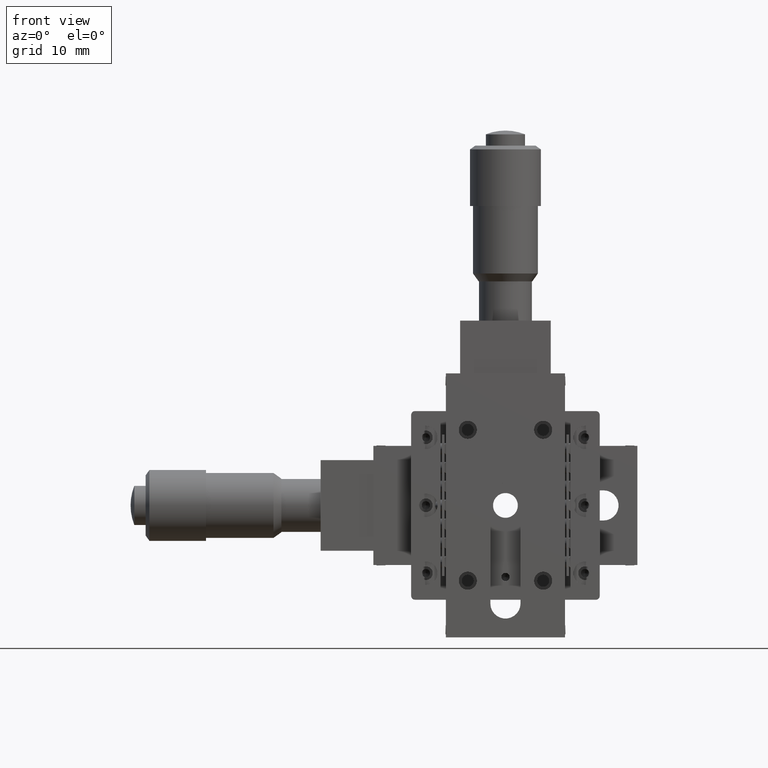
[diagram: clean part render]
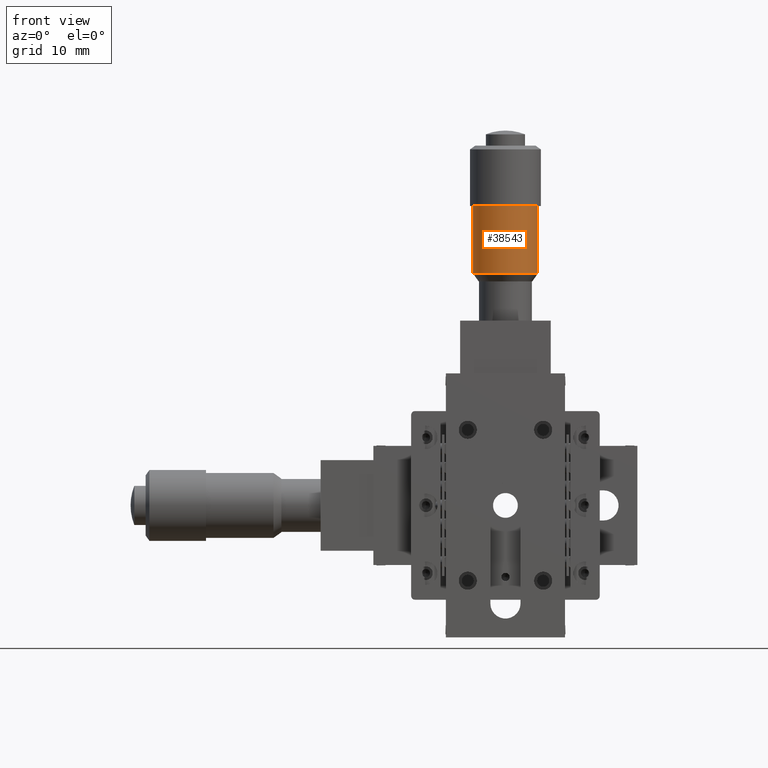
[diagram: same view with one face highlighted and labeled with its STEP entity id]
A machine part, front view. The second image highlights one B-rep face of the part: STEP entity #38543.
In plain terms, the highlighted cylindrical surface (edge-blend (fillet) strip) has radius 4.3 mm, axis along (0, 0, 1).
Its self-contained STEP definition (entity closure, byte-faithful):
#1103 = CARTESIAN_POINT ( 'NONE',  ( -4.298161888975661400, 6.325715532416905900, 36.62222717098815400 ) ) ;
#1215 = DIRECTION ( 'NONE',  ( 0.9995725314435851500, -0.02923618277858836300, 0.0000000000000000000 ) ) ;
#1344 = CARTESIAN_POINT ( 'NONE',  ( -4.299475642102383900, 6.267207786158824200, 36.22701718947350000 ) ) ;
#1588 = ORIENTED_EDGE ( 'NONE', *, *, #47092, .T. ) ;
#2334 = VERTEX_POINT ( 'NONE', #50596 ) ;
#4590 = CARTESIAN_POINT ( 'NONE',  ( 4.298161885207453500, 6.074284414051987800, 83.73849299920763700 ) ) ;
#4661 = VERTEX_POINT ( 'NONE', #35452 ) ;
#4986 = VERTEX_POINT ( 'NONE', #43692 ) ;
#6276 = ORIENTED_EDGE ( 'NONE', *, *, #39164, .F. ) ;
#6992 = VERTEX_POINT ( 'NONE', #67832 ) ;
#7190 = ORIENTED_EDGE ( 'NONE', *, *, #36178, .T. ) ;
#7510 = CARTESIAN_POINT ( 'NONE',  ( 2.584912180171703300E-014, 6.199999999999897100, 37.23787676788948900 ) ) ;
#7522 = B_SPLINE_CURVE_WITH_KNOTS ( 'NONE', 3,
 ( #1103, #50589, #49903, #17987, #33906, #50124, #29107, #28878, #1344, #45326, #28659 ),
 .UNSPECIFIED., .F., .F.,
 ( 4, 2, 2, 2, 1, 4 ),
 ( 0.3650545863494868400, 0.5237909397621030000, 0.6825272931747190500, 0.7618954698810391800, 0.8412636465873595300, 1.000000000000000000 ),
 .UNSPECIFIED. ) ;
#7734 = CARTESIAN_POINT ( 'NONE',  ( 4.296902805728514400, 6.036824394829379200, 37.14221612708995900 ) ) ;
#7888 = ORIENTED_EDGE ( 'NONE', *, *, #59313, .T. ) ;
#9181 = VERTEX_POINT ( 'NONE', #50299 ) ;
#10602 = CARTESIAN_POINT ( 'NONE',  ( -4.299084991811113800, 6.289292834810142500, 35.77487089155305000 ) ) ;
#10736 = ORIENTED_EDGE ( 'NONE', *, *, #33158, .T. ) ;
#12002 = CARTESIAN_POINT ( 'NONE',  ( -4.298771640651714200, 6.304868309213713200, 35.69321220332514600 ) ) ;
#13942 = ORIENTED_EDGE ( 'NONE', *, *, #26246, .T. ) ;
#15144 = AXIS2_PLACEMENT_3D ( 'NONE', #7510, #44865, #29332 ) ;
#15359 = AXIS2_PLACEMENT_3D ( 'NONE', #23997, #29443, #56100 ) ;
#16071 = CARTESIAN_POINT ( 'NONE',  ( -4.298161881797285300, 6.325715702572399100, 35.61349922465714700 ) ) ;
#17987 = CARTESIAN_POINT ( 'NONE',  ( -4.299071530591043600, 6.289680441941953900, 36.45123226953234800 ) ) ;
#18116 = VERTEX_POINT ( 'NONE', #39909 ) ;
#19120 = DIRECTION ( 'NONE',  ( 0.9995725314435851500, -0.02923618277858836300, 0.0000000000000000000 ) ) ;
#19177 = LINE ( 'NONE', #61086, #46399 ) ;
#20250 = ORIENTED_EDGE ( 'NONE', *, *, #41293, .F. ) ;
#20297 = DIRECTION ( 'NONE',  ( 1.110223024626044300E-016, 1.762506864451433100E-016, 1.000000000000000000 ) ) ;
#22779 = CIRCLE ( 'NONE', #46798, 4.300000000000006000 ) ;
#23997 = CARTESIAN_POINT ( 'NONE',  ( 3.099642705165774200E-014, 6.199999999999918500, 83.73849299920763700 ) ) ;
#24347 = VERTEX_POINT ( 'NONE', #40377 ) ;
#25356 = DIRECTION ( 'NONE',  ( 1.110223024626044300E-016, 1.762506864451433100E-016, 1.000000000000000000 ) ) ;
#25669 = ORIENTED_EDGE ( 'NONE', *, *, #28424, .T. ) ;
#25878 = CIRCLE ( 'NONE', #31681, 4.300000000000006000 ) ;
#26246 = EDGE_CURVE ( 'NONE', #4661, #18116, #25878, .T. ) ;
#26406 = LINE ( 'NONE', #56567, #44318 ) ;
#26724 = CARTESIAN_POINT ( 'NONE',  ( -4.299518700135160500, 6.264334649978660100, 36.10190665839508000 ) ) ;
#27202 = LINE ( 'NONE', #34761, #28850 ) ;
#27954 = FACE_OUTER_BOUND ( 'NONE', #59291, .T. ) ;
#28302 = CARTESIAN_POINT ( 'NONE',  ( 2.597022116506557600E-014, 6.199999999999898000, 39.69746992999999000 ) ) ;
#28424 = EDGE_CURVE ( 'NONE', #2334, #4986, #7522, .T. ) ;
#28659 = CARTESIAN_POINT ( 'NONE',  ( -4.299518700135160500, 6.264334649978660100, 36.10190665839508000 ) ) ;
#28850 = VECTOR ( 'NONE', #29258, 1000.000000000000000 ) ;
#28878 = CARTESIAN_POINT ( 'NONE',  ( -4.299417012248877500, 6.270818284547171800, 36.28325171279388400 ) ) ;
#29107 = CARTESIAN_POINT ( 'NONE',  ( -4.299371041534885600, 6.273556249581600000, 36.31743757126597000 ) ) ;
#29258 = DIRECTION ( 'NONE',  ( 5.173820016162134100E-018, 1.793466154370806700E-016, 1.000000000000000000 ) ) ;
#29332 = DIRECTION ( 'NONE',  ( 0.9948952906140942100, 0.1009126390195849800, 0.0000000000000000000 ) ) ;
#29443 = DIRECTION ( 'NONE',  ( 1.110223024626044300E-016, 1.762506864451433100E-016, 1.000000000000000000 ) ) ;
#30022 = AXIS2_PLACEMENT_3D ( 'NONE', #28302, #66326, #1215 ) ;
#31681 = AXIS2_PLACEMENT_3D ( 'NONE', #67798, #62600, #19120 ) ;
#32614 = CARTESIAN_POINT ( 'NONE',  ( 4.298161885207448100, 6.074284414051980700, 37.14221612708995900 ) ) ;
#33158 = EDGE_CURVE ( 'NONE', #4986, #65021, #46766, .T. ) ;
#33770 = DIRECTION ( 'NONE',  ( 1.110223024626044300E-016, 1.762506864451433100E-016, 1.000000000000000000 ) ) ;
#33906 = CARTESIAN_POINT ( 'NONE',  ( -4.299194531600720700, 6.283372684705191200, 36.40825967323662100 ) ) ;
#34761 = CARTESIAN_POINT ( 'NONE',  ( 4.296902805728514400, 6.036824394829379200, 37.14221612708995900 ) ) ;
#35452 = CARTESIAN_POINT ( 'NONE',  ( -4.298161885207396600, 6.325715585947826900, 30.74746992999999400 ) ) ;
#36178 = EDGE_CURVE ( 'NONE', #9181, #6992, #26406, .T. ) ;
#36757 = CARTESIAN_POINT ( 'NONE',  ( 4.296902805728514400, 6.036824394829379200, 37.23787676788948900 ) ) ;
#37693 = DIRECTION ( 'NONE',  ( 0.9997107461728599300, -0.02405044670071193900, 0.0000000000000000000 ) ) ;
#38543 = ADVANCED_FACE ( 'NONE', ( #27954 ), #39009, .T. ) ;
#39009 = CYLINDRICAL_SURFACE ( 'NONE', #15359, 4.300000000000006000 ) ;
#39164 = EDGE_CURVE ( 'NONE', #57460, #40450, #22779, .T. ) ;
#39305 = CARTESIAN_POINT ( 'NONE',  ( -4.299320433775018400, 6.276487703568401200, 35.87675521470772800 ) ) ;
#39730 = CIRCLE ( 'NONE', #15144, 4.300000000000014000 ) ;
#39909 = CARTESIAN_POINT ( 'NONE',  ( 4.298161885207447200, 6.074284414051966500, 30.74746992999999400 ) ) ;
#40377 = CARTESIAN_POINT ( 'NONE',  ( -4.298161885207389500, 6.325715585947839300, 39.69746992999999000 ) ) ;
#40399 = DIRECTION ( 'NONE',  ( 1.110223024626044300E-016, 1.762506864451433100E-016, 1.000000000000000000 ) ) ;
#40450 = VERTEX_POINT ( 'NONE', #32614 ) ;
#41293 = EDGE_CURVE ( 'NONE', #2334, #24347, #19177, .T. ) ;
#42187 = ORIENTED_EDGE ( 'NONE', *, *, #62572, .F. ) ;
#43076 = CARTESIAN_POINT ( 'NONE',  ( -4.298161881797285300, 6.325715702572399100, 35.61349922465714700 ) ) ;
#43692 = CARTESIAN_POINT ( 'NONE',  ( -4.299518700135160500, 6.264334649978660100, 36.10190665839508000 ) ) ;
#44318 = VECTOR ( 'NONE', #40399, 1000.000000000000000 ) ;
#44577 = CARTESIAN_POINT ( 'NONE',  ( -4.299421812216579900, 6.270537722050217000, 35.93747706129513400 ) ) ;
#44865 = DIRECTION ( 'NONE',  ( 1.110223024626044300E-016, 1.762506864451433100E-016, 1.000000000000000000 ) ) ;
#45326 = CARTESIAN_POINT ( 'NONE',  ( -4.299507446936221600, 6.265086707218298300, 36.15591545931626200 ) ) ;
#46399 = VECTOR ( 'NONE', #33770, 1000.000000000000000 ) ;
#46766 = B_SPLINE_CURVE_WITH_KNOTS ( 'NONE', 3,
 ( #26724, #48415, #70442, #64768, #44577, #66375, #39305, #10602, #12002, #16071 ),
 .UNSPECIFIED., .F., .F.,
 ( 4, 2, 2, 2, 4 ),
 ( 0.0000000000000000000, 0.1829254814171103500, 0.2743882221256482300, 0.3658509628341861700, 0.7317019256683688900 ),
 .UNSPECIFIED. ) ;
#46798 = AXIS2_PLACEMENT_3D ( 'NONE', #64777, #70225, #37693 ) ;
#47092 = EDGE_CURVE ( 'NONE', #62883, #9181, #39730, .T. ) ;
#48415 = CARTESIAN_POINT ( 'NONE',  ( -4.299509497574321800, 6.264949661988929100, 36.05122715350817200 ) ) ;
#48565 = EDGE_CURVE ( 'NONE', #18116, #40450, #57442, .T. ) ;
#49903 = CARTESIAN_POINT ( 'NONE',  ( -4.298724953313792300, 6.304987535272845300, 36.53535278307619900 ) ) ;
#50124 = CARTESIAN_POINT ( 'NONE',  ( -4.299330265894087500, 6.275930369695277700, 36.34243226950732000 ) ) ;
#50299 = CARTESIAN_POINT ( 'NONE',  ( 4.298161885207441000, 6.074284414051979800, 37.23787676788948900 ) ) ;
#50589 = CARTESIAN_POINT ( 'NONE',  ( -4.298482493079164100, 6.314754140494757800, 36.58011535403743900 ) ) ;
#50596 = CARTESIAN_POINT ( 'NONE',  ( -4.298161888975661400, 6.325715532416905900, 36.62222717098815400 ) ) ;
#51522 = VECTOR ( 'NONE', #20297, 1000.000000000000000 ) ;
#53875 = VECTOR ( 'NONE', #25356, 1000.000000000000000 ) ;
#53938 = ORIENTED_EDGE ( 'NONE', *, *, #56161, .F. ) ;
#54832 = ORIENTED_EDGE ( 'NONE', *, *, #48565, .T. ) ;
#56100 = DIRECTION ( 'NONE',  ( 0.9995725314435851500, -0.02923618277858836300, 0.0000000000000000000 ) ) ;
#56161 = EDGE_CURVE ( 'NONE', #4661, #65021, #68277, .T. ) ;
#56567 = CARTESIAN_POINT ( 'NONE',  ( 4.298161885207453500, 6.074284414051987800, 83.73849299920763700 ) ) ;
#57442 = LINE ( 'NONE', #4590, #51522 ) ;
#57460 = VERTEX_POINT ( 'NONE', #7734 ) ;
#58380 = CIRCLE ( 'NONE', #30022, 4.300000000000006000 ) ;
#59291 = EDGE_LOOP ( 'NONE', ( #53938, #13942, #54832, #6276, #7888, #1588, #7190, #42187, #20250, #25669, #10736 ) ) ;
#59313 = EDGE_CURVE ( 'NONE', #57460, #62883, #27202, .T. ) ;
#61086 = CARTESIAN_POINT ( 'NONE',  ( -4.298161885207391300, 6.325715585947848200, 83.73849299920763700 ) ) ;
#62572 = EDGE_CURVE ( 'NONE', #24347, #6992, #58380, .T. ) ;
#62600 = DIRECTION ( 'NONE',  ( 1.110223024626044300E-016, 1.762506864451433100E-016, 1.000000000000000000 ) ) ;
#62883 = VERTEX_POINT ( 'NONE', #36757 ) ;
#64768 = CARTESIAN_POINT ( 'NONE',  ( -4.299439487127692400, 6.269434772037507200, 35.95258026031312700 ) ) ;
#64777 = CARTESIAN_POINT ( 'NONE',  ( 2.584862687077890700E-014, 6.199999999999897100, 37.14221612708995900 ) ) ;
#65021 = VERTEX_POINT ( 'NONE', #43076 ) ;
#66326 = DIRECTION ( 'NONE',  ( 1.110223024626044300E-016, 1.762506864451433100E-016, 1.000000000000000000 ) ) ;
#66375 = CARTESIAN_POINT ( 'NONE',  ( -4.299358902071584300, 6.274273284386504600, 35.89705032987759400 ) ) ;
#67798 = CARTESIAN_POINT ( 'NONE',  ( 2.511111144330994500E-014, 6.199999999999896300, 30.74746992999999400 ) ) ;
#67832 = CARTESIAN_POINT ( 'NONE',  ( 4.298161885207448100, 6.074284414051968300, 39.69746992999999000 ) ) ;
#68277 = LINE ( 'NONE', #68618, #53875 ) ;
#68618 = CARTESIAN_POINT ( 'NONE',  ( -4.298161885207391300, 6.325715585947848200, 83.73849299920763700 ) ) ;
#70225 = DIRECTION ( 'NONE',  ( 1.110223024626044300E-016, 1.762506864451433100E-016, 1.000000000000000000 ) ) ;
#70442 = CARTESIAN_POINT ( 'NONE',  ( -4.299489326010757400, 6.266301581300815800, 36.00756061587682000 ) ) ;